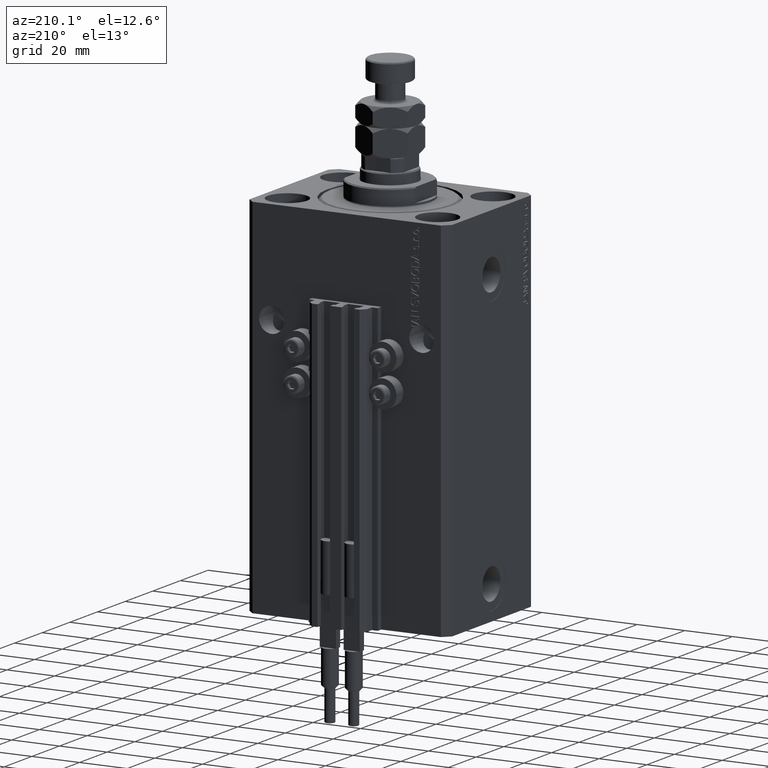
[diagram: clean part render]
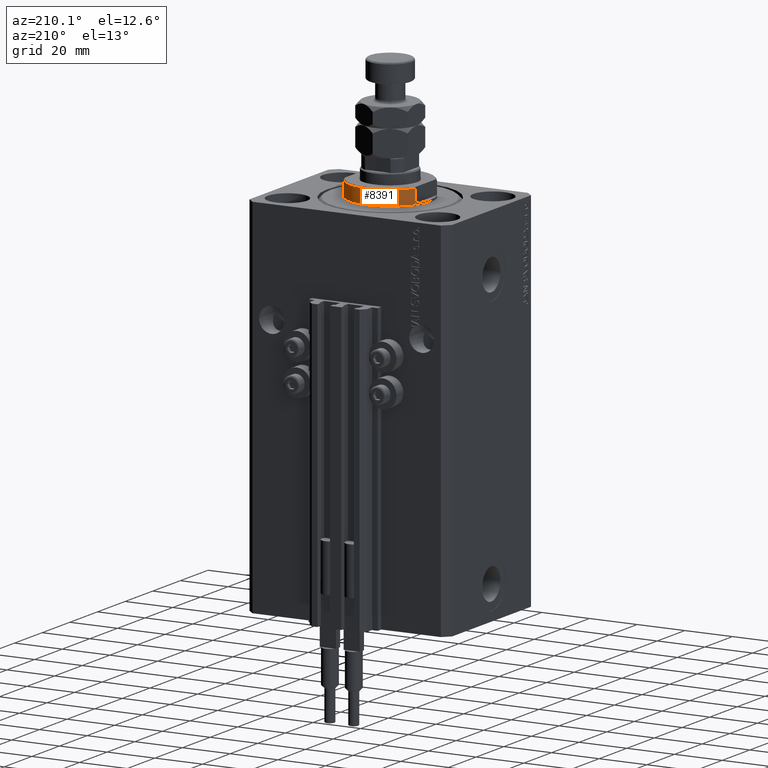
[diagram: same view with one face highlighted and labeled with its STEP entity id]
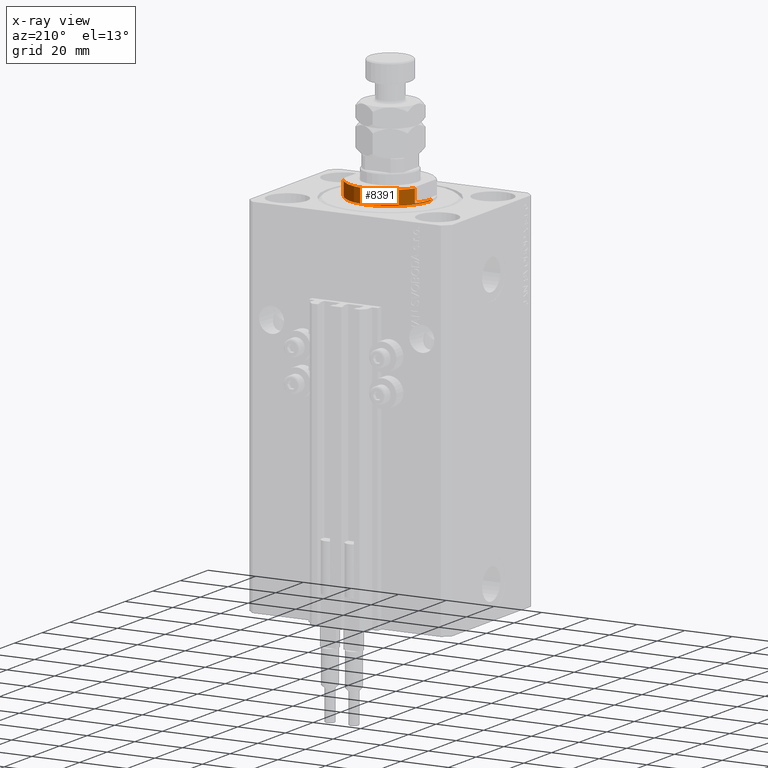
[diagram: x-ray of the same camera — body ghosted, the highlighted face saturated]
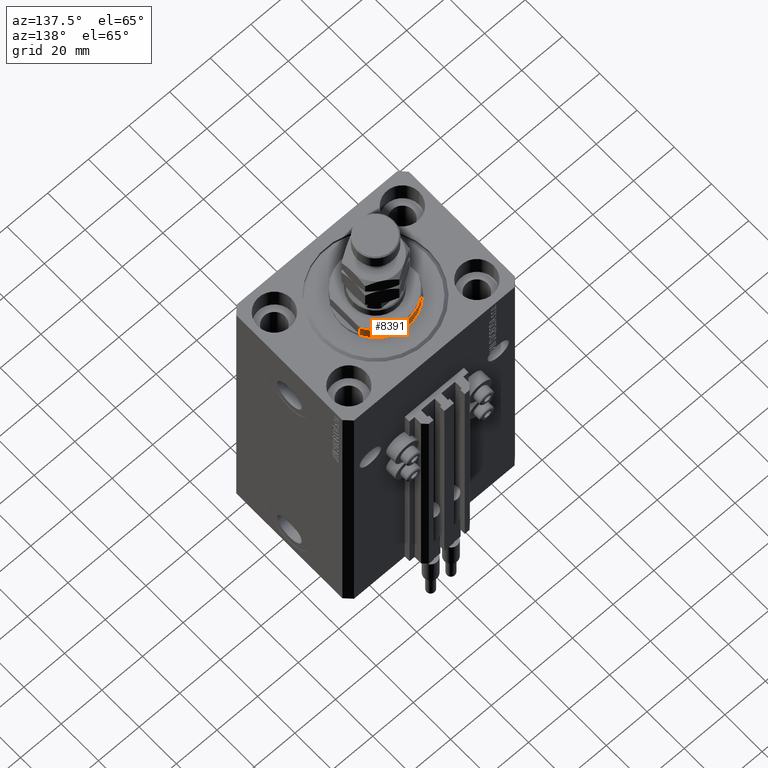
[diagram: same view with one face highlighted and labeled with its STEP entity id]
A machine part, auxiliary view. The second image highlights one B-rep face of the part: STEP entity #8391.
The next image is the same camera in x-ray: the body ghosted, the highlighted face saturated — about 0% of this face is hidden behind the body in this view.
A second angle (auxiliary view) of the same face is appended — the face is thin or edge-on in the first view.
In plain terms, the highlighted cylindrical surface (partial cylindrical patch) has radius 17 mm, axis along (0, 0, -1).
Its self-contained STEP definition (entity closure, byte-faithful):
#1112 = CARTESIAN_POINT ( 'NONE',  ( 15.00000000000000000, 8.000000000000001776, -6.500000000000000888 ) ) ;
#2163 = AXIS2_PLACEMENT_3D ( 'NONE', #18110, #29861, #5839 ) ;
#2233 = CARTESIAN_POINT ( 'NONE',  ( 14.99999999999999645, 8.000000000000003553, -1.000000000000000000 ) ) ;
#2766 = CYLINDRICAL_SURFACE ( 'NONE', #27849, 17.00000000000000000 ) ;
#3071 = VECTOR ( 'NONE', #18221, 1000.000000000000000 ) ;
#3308 = EDGE_CURVE ( 'NONE', #25776, #25649, #21123, .T. ) ;
#3789 = EDGE_CURVE ( 'NONE', #8018, #12408, #23558, .T. ) ;
#5193 = EDGE_CURVE ( 'NONE', #6323, #17238, #15476, .T. ) ;
#5245 = DIRECTION ( 'NONE',  ( -0.000000000000000000, -0.000000000000000000, -1.000000000000000000 ) ) ;
#5413 = DIRECTION ( 'NONE',  ( 0.000000000000000000, 0.000000000000000000, -1.000000000000000000 ) ) ;
#5616 = DIRECTION ( 'NONE',  ( -0.000000000000000000, -0.000000000000000000, 1.000000000000000000 ) ) ;
#5671 = EDGE_LOOP ( 'NONE', ( #19580, #44568, #29846, #7196, #42138, #26480, #39032, #35861 ) ) ;
#5839 = DIRECTION ( 'NONE',  ( -1.000000000000000000, 0.000000000000000000, 0.000000000000000000 ) ) ;
#6323 = VERTEX_POINT ( 'NONE', #15036 ) ;
#6704 = CARTESIAN_POINT ( 'NONE',  ( 15.00000000000000000, 8.000000000000001776, -7.000000000000000000 ) ) ;
#6894 = CARTESIAN_POINT ( 'NONE',  ( -15.00000000000000000, 8.000000000000001776, -7.000000000000000000 ) ) ;
#7196 = ORIENTED_EDGE ( 'NONE', *, *, #23413, .F. ) ;
#7283 = AXIS2_PLACEMENT_3D ( 'NONE', #30635, #26542, #38325 ) ;
#8018 = VERTEX_POINT ( 'NONE', #13608 ) ;
#8391 = ADVANCED_FACE ( 'NONE', ( #31612 ), #2766, .T. ) ;
#8609 = CARTESIAN_POINT ( 'NONE',  ( -14.99999999999999645, 8.000000000000003553, -1.000000000000000000 ) ) ;
#9458 = LINE ( 'NONE', #29389, #16532 ) ;
#10151 = VECTOR ( 'NONE', #31158, 1000.000000000000000 ) ;
#10759 = VERTEX_POINT ( 'NONE', #1112 ) ;
#10785 = VERTEX_POINT ( 'NONE', #43834 ) ;
#11152 = CIRCLE ( 'NONE', #2163, 17.00000000000000000 ) ;
#12408 = VERTEX_POINT ( 'NONE', #8609 ) ;
#13176 = DIRECTION ( 'NONE',  ( 1.000000000000000000, 0.000000000000000000, 0.000000000000000000 ) ) ;
#13608 = CARTESIAN_POINT ( 'NONE',  ( -17.00000000000000000, 2.081899558550500280E-15, -1.000000000000000000 ) ) ;
#13672 = CARTESIAN_POINT ( 'NONE',  ( 0.000000000000000000, 0.000000000000000000, -0.4999999999999995559 ) ) ;
#15036 = CARTESIAN_POINT ( 'NONE',  ( -17.00000000000000000, 2.081899558550500280E-15, -0.4999999999999995559 ) ) ;
#15476 = CIRCLE ( 'NONE', #30979, 17.00000000000000000 ) ;
#16144 = CARTESIAN_POINT ( 'NONE',  ( 17.00000000000000000, 0.000000000000000000, -0.4999999999999995559 ) ) ;
#16290 = EDGE_CURVE ( 'NONE', #8018, #6323, #9458, .T. ) ;
#16532 = VECTOR ( 'NONE', #5616, 1000.000000000000000 ) ;
#16581 = LINE ( 'NONE', #36273, #10151 ) ;
#17187 = DIRECTION ( 'NONE',  ( -1.000000000000000000, 0.000000000000000000, 0.000000000000000000 ) ) ;
#17238 = VERTEX_POINT ( 'NONE', #16144 ) ;
#18110 = CARTESIAN_POINT ( 'NONE',  ( 0.000000000000000000, 0.000000000000000000, -6.500000000000000000 ) ) ;
#18221 = DIRECTION ( 'NONE',  ( -0.000000000000000000, -0.000000000000000000, 1.000000000000000000 ) ) ;
#18383 = DIRECTION ( 'NONE',  ( -0.000000000000000000, -0.000000000000000000, 1.000000000000000000 ) ) ;
#19580 = ORIENTED_EDGE ( 'NONE', *, *, #3789, .F. ) ;
#19596 = CARTESIAN_POINT ( 'NONE',  ( 0.000000000000000000, 0.000000000000000000, -7.000000000000000000 ) ) ;
#21123 = CIRCLE ( 'NONE', #49705, 17.00000000000000000 ) ;
#23413 = EDGE_CURVE ( 'NONE', #25649, #17238, #16581, .T. ) ;
#23558 = CIRCLE ( 'NONE', #7283, 17.00000000000000000 ) ;
#25649 = VERTEX_POINT ( 'NONE', #33589 ) ;
#25776 = VERTEX_POINT ( 'NONE', #2233 ) ;
#26480 = ORIENTED_EDGE ( 'NONE', *, *, #34811, .F. ) ;
#26542 = DIRECTION ( 'NONE',  ( 0.000000000000000000, 0.000000000000000000, -1.000000000000000000 ) ) ;
#27849 = AXIS2_PLACEMENT_3D ( 'NONE', #19596, #18383, #49577 ) ;
#28198 = CARTESIAN_POINT ( 'NONE',  ( 0.000000000000000000, 0.000000000000000000, -1.000000000000000000 ) ) ;
#29389 = CARTESIAN_POINT ( 'NONE',  ( -17.00000000000000000, 2.081899558550500280E-15, -7.000000000000000000 ) ) ;
#29846 = ORIENTED_EDGE ( 'NONE', *, *, #5193, .T. ) ;
#29861 = DIRECTION ( 'NONE',  ( 0.000000000000000000, 0.000000000000000000, 1.000000000000000000 ) ) ;
#30635 = CARTESIAN_POINT ( 'NONE',  ( 0.000000000000000000, 0.000000000000000000, -1.000000000000000000 ) ) ;
#30979 = AXIS2_PLACEMENT_3D ( 'NONE', #13672, #5245, #13176 ) ;
#31158 = DIRECTION ( 'NONE',  ( -0.000000000000000000, -0.000000000000000000, 1.000000000000000000 ) ) ;
#31612 = FACE_OUTER_BOUND ( 'NONE', #5671, .T. ) ;
#32692 = EDGE_CURVE ( 'NONE', #10759, #10785, #11152, .T. ) ;
#33589 = CARTESIAN_POINT ( 'NONE',  ( 17.00000000000000000, 0.000000000000000000, -1.000000000000000000 ) ) ;
#33765 = LINE ( 'NONE', #6894, #46504 ) ;
#34272 = DIRECTION ( 'NONE',  ( -0.000000000000000000, -0.000000000000000000, 1.000000000000000000 ) ) ;
#34811 = EDGE_CURVE ( 'NONE', #10759, #25776, #35023, .T. ) ;
#35023 = LINE ( 'NONE', #6704, #3071 ) ;
#35861 = ORIENTED_EDGE ( 'NONE', *, *, #38702, .T. ) ;
#36273 = CARTESIAN_POINT ( 'NONE',  ( 17.00000000000000000, 0.000000000000000000, -7.000000000000000000 ) ) ;
#38325 = DIRECTION ( 'NONE',  ( -1.000000000000000000, 0.000000000000000000, 0.000000000000000000 ) ) ;
#38702 = EDGE_CURVE ( 'NONE', #10785, #12408, #33765, .T. ) ;
#39032 = ORIENTED_EDGE ( 'NONE', *, *, #32692, .T. ) ;
#42138 = ORIENTED_EDGE ( 'NONE', *, *, #3308, .F. ) ;
#43834 = CARTESIAN_POINT ( 'NONE',  ( -15.00000000000000000, 8.000000000000001776, -6.500000000000000888 ) ) ;
#44568 = ORIENTED_EDGE ( 'NONE', *, *, #16290, .T. ) ;
#46504 = VECTOR ( 'NONE', #34272, 1000.000000000000000 ) ;
#49577 = DIRECTION ( 'NONE',  ( 1.000000000000000000, 0.000000000000000000, 0.000000000000000000 ) ) ;
#49705 = AXIS2_PLACEMENT_3D ( 'NONE', #28198, #5413, #17187 ) ;